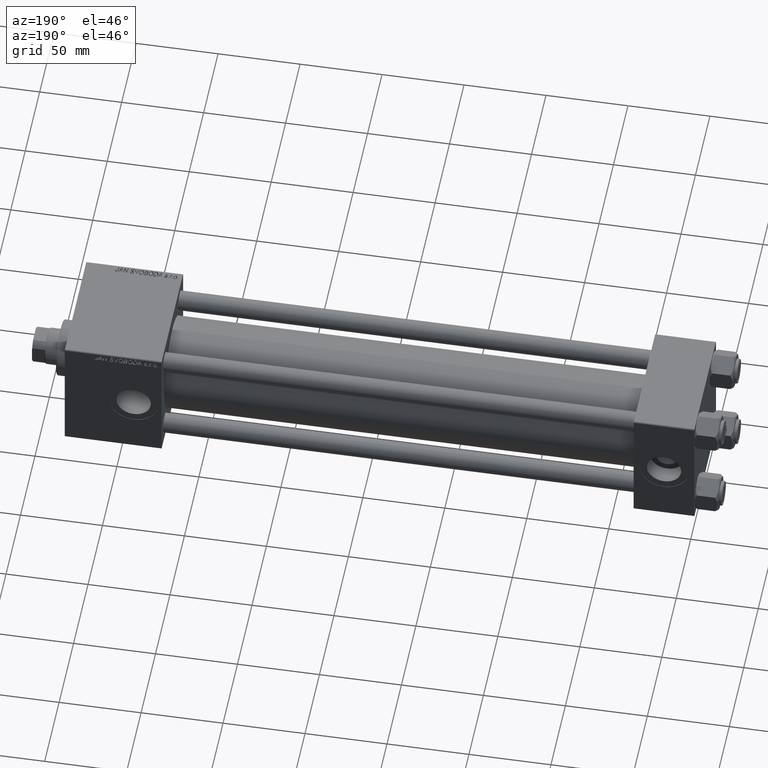
[diagram: clean part render]
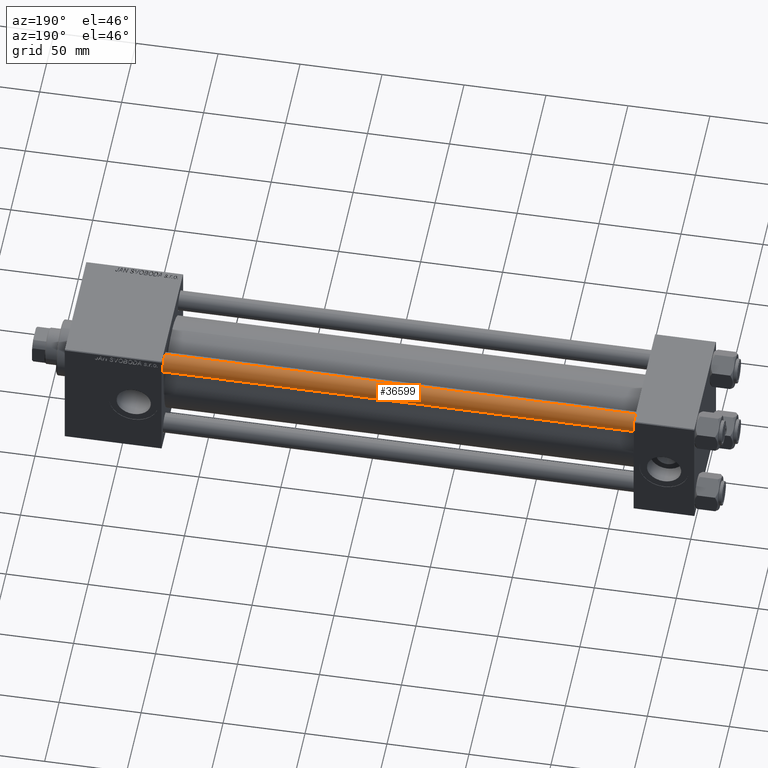
[diagram: same view with one face highlighted and labeled with its STEP entity id]
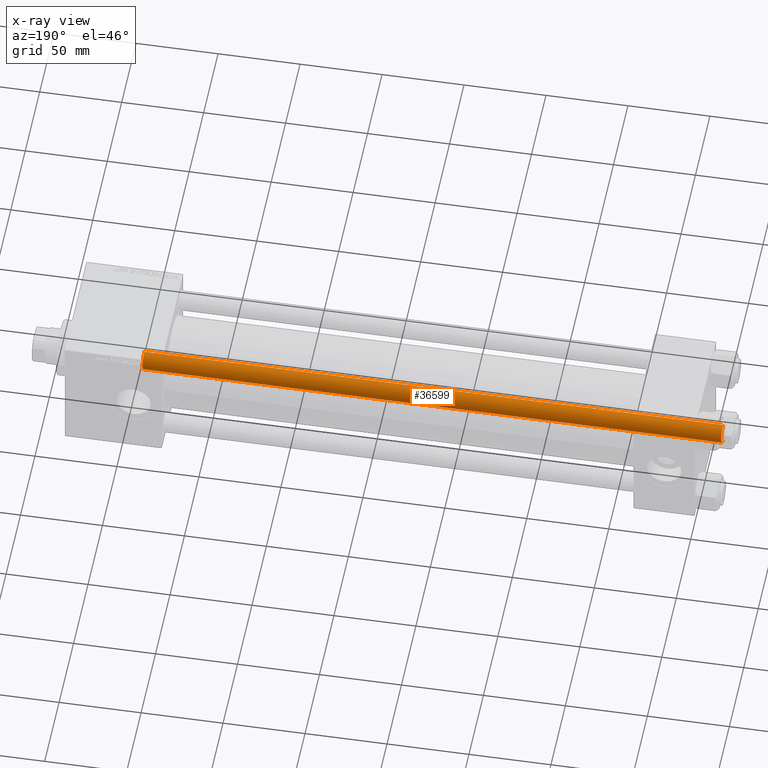
[diagram: x-ray of the same camera — body ghosted, the highlighted face saturated]
A machine part, auxiliary view. The second image highlights one B-rep face of the part: STEP entity #36599.
The next image is the same camera in x-ray: the body ghosted, the highlighted face saturated — about 0% of this face is hidden behind the body in this view.
In plain terms, the highlighted cylindrical surface (edge-blend (fillet) strip) has radius 6 mm, axis along (-1, 0, 0).
Its self-contained STEP definition (entity closure, byte-faithful):
#418 = LINE ( 'NONE', #28651, #21083 ) ;
#1077 = EDGE_LOOP ( 'NONE', ( #40660, #44833, #26247, #16545 ) ) ;
#3201 = EDGE_CURVE ( 'NONE', #13916, #42870, #46972, .T. ) ;
#4537 = DIRECTION ( 'NONE',  ( 1.000000000000000000, 0.000000000000000000, 0.000000000000000000 ) ) ;
#5387 = DIRECTION ( 'NONE',  ( -0.000000000000000000, -0.000000000000000000, -1.000000000000000000 ) ) ;
#9214 = EDGE_CURVE ( 'NONE', #46692, #13916, #418, .T. ) ;
#13916 = VERTEX_POINT ( 'NONE', #35146 ) ;
#14959 = VECTOR ( 'NONE', #52095, 1000.000000000000000 ) ;
#15497 = AXIS2_PLACEMENT_3D ( 'NONE', #21148, #33530, #4537 ) ;
#16488 = CARTESIAN_POINT ( 'NONE',  ( 0.000000000000000000, 0.000000000000000000, 354.0000000000000000 ) ) ;
#16524 = CARTESIAN_POINT ( 'NONE',  ( -6.000000000000000888, 0.000000000000000000, 353.5000000000000000 ) ) ;
#16545 = ORIENTED_EDGE ( 'NONE', *, *, #40171, .F. ) ;
#20044 = CARTESIAN_POINT ( 'NONE',  ( 6.000000000000000888, 7.347880794884120722E-16, 353.5000000000000000 ) ) ;
#20167 = DIRECTION ( 'NONE',  ( 1.000000000000000000, 0.000000000000000000, 0.000000000000000000 ) ) ;
#21083 = VECTOR ( 'NONE', #44757, 1000.000000000000000 ) ;
#21148 = CARTESIAN_POINT ( 'NONE',  ( 0.000000000000000000, 0.000000000000000000, 353.5000000000000000 ) ) ;
#22339 = EDGE_CURVE ( 'NONE', #30879, #46692, #34875, .T. ) ;
#24119 = CARTESIAN_POINT ( 'NONE',  ( 0.000000000000000000, 0.000000000000000000, 0.5000000000000559552 ) ) ;
#26247 = ORIENTED_EDGE ( 'NONE', *, *, #3201, .T. ) ;
#28597 = DIRECTION ( 'NONE',  ( -0.000000000000000000, -0.000000000000000000, 1.000000000000000000 ) ) ;
#28651 = CARTESIAN_POINT ( 'NONE',  ( 6.000000000000000888, 7.347880794884120722E-16, 354.0000000000000000 ) ) ;
#30879 = VERTEX_POINT ( 'NONE', #16524 ) ;
#31643 = AXIS2_PLACEMENT_3D ( 'NONE', #16488, #5387, #40753 ) ;
#32840 = FACE_OUTER_BOUND ( 'NONE', #1077, .T. ) ;
#33530 = DIRECTION ( 'NONE',  ( 0.000000000000000000, 0.000000000000000000, -1.000000000000000000 ) ) ;
#34875 = CIRCLE ( 'NONE', #15497, 6.000000000000000888 ) ;
#35146 = CARTESIAN_POINT ( 'NONE',  ( 6.000000000000000888, 7.347880794884120722E-16, 0.5000000000000559552 ) ) ;
#35997 = AXIS2_PLACEMENT_3D ( 'NONE', #24119, #28597, #20167 ) ;
#36511 = CARTESIAN_POINT ( 'NONE',  ( -6.000000000000000888, 0.000000000000000000, 354.0000000000000000 ) ) ;
#36599 = ADVANCED_FACE ( 'NONE', ( #32840 ), #44479, .T. ) ;
#40171 = EDGE_CURVE ( 'NONE', #30879, #42870, #44445, .T. ) ;
#40660 = ORIENTED_EDGE ( 'NONE', *, *, #22339, .T. ) ;
#40753 = DIRECTION ( 'NONE',  ( -1.000000000000000000, 0.000000000000000000, 0.000000000000000000 ) ) ;
#42870 = VERTEX_POINT ( 'NONE', #45093 ) ;
#44445 = LINE ( 'NONE', #36511, #14959 ) ;
#44479 = CYLINDRICAL_SURFACE ( 'NONE', #31643, 6.000000000000000888 ) ;
#44757 = DIRECTION ( 'NONE',  ( -0.000000000000000000, -0.000000000000000000, -1.000000000000000000 ) ) ;
#44833 = ORIENTED_EDGE ( 'NONE', *, *, #9214, .T. ) ;
#45093 = CARTESIAN_POINT ( 'NONE',  ( -6.000000000000000888, 0.000000000000000000, 0.5000000000000559552 ) ) ;
#46692 = VERTEX_POINT ( 'NONE', #20044 ) ;
#46972 = CIRCLE ( 'NONE', #35997, 6.000000000000000888 ) ;
#52095 = DIRECTION ( 'NONE',  ( -0.000000000000000000, -0.000000000000000000, -1.000000000000000000 ) ) ;